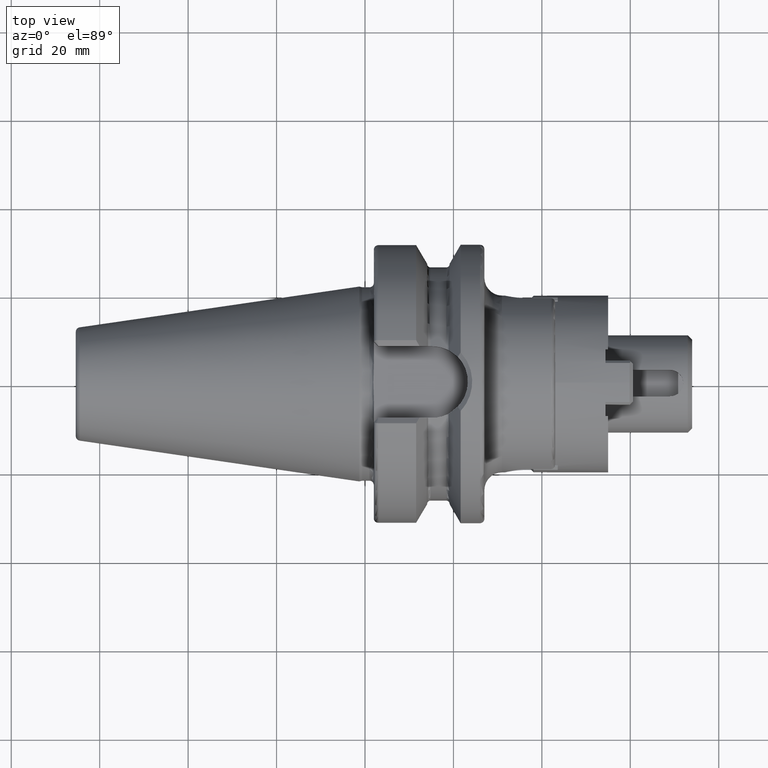
[diagram: clean part render]
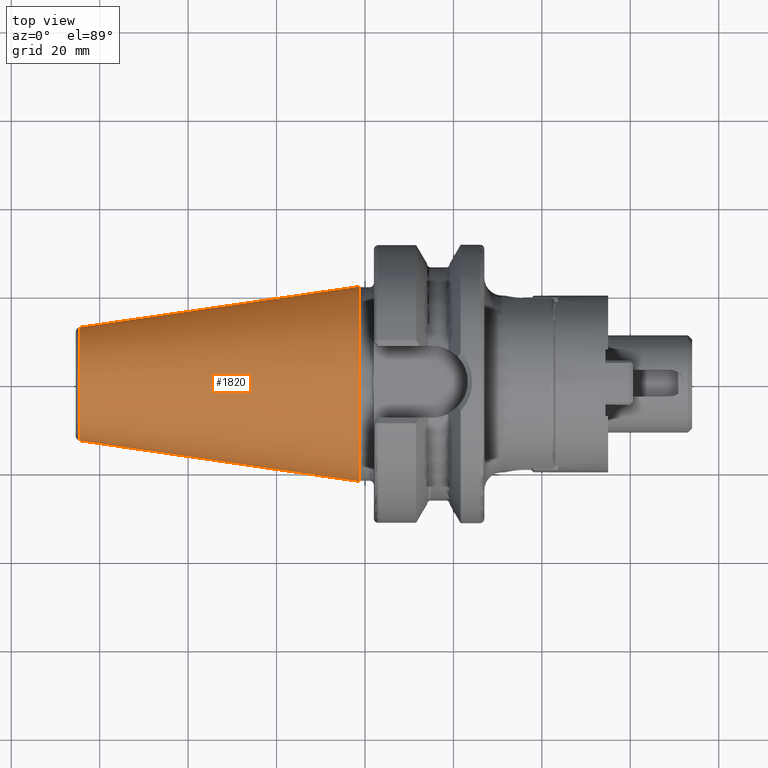
[diagram: same view with one face highlighted and labeled with its STEP entity id]
A machine part, top view. The second image highlights one B-rep face of the part: STEP entity #1820.
In plain terms, the highlighted conical surface has half-angle 8.298 deg.
Its self-contained STEP definition (entity closure, byte-faithful):
#37=CARTESIAN_POINT('',(-6.454431866917E1,0.E0,0.E0));
#38=DIRECTION('',(1.E0,0.E0,0.E0));
#39=DIRECTION('',(0.E0,1.E0,0.E0));
#40=AXIS2_PLACEMENT_3D('',#37,#38,#39);
#42=CARTESIAN_POINT('',(-1.266732031557E0,0.E0,0.E0));
#43=DIRECTION('',(1.E0,0.E0,0.E0));
#44=DIRECTION('',(0.E0,1.E0,0.E0));
#45=AXIS2_PLACEMENT_3D('',#42,#43,#44);
#47=DIRECTION('',(-9.895312636440E-1,-1.443186691705E-1,0.E0));
#48=VECTOR('',#47,6.394703124850E1);
#49=CARTESIAN_POINT('',(-1.266732031557E0,2.204025284980E1,0.E0));
#50=LINE('',#49,#48);
#51=DIRECTION('',(-9.895312636440E-1,1.443186691705E-1,0.E0));
#52=VECTOR('',#51,6.394703124850E1);
#53=CARTESIAN_POINT('',(-1.266732031557E0,-2.204025284980E1,0.E0));
#54=LINE('',#53,#52);
#1454=CARTESIAN_POINT('',(-6.454431866917E1,1.281150240261E1,0.E0));
#1456=VERTEX_POINT('',#1454);
#1458=CARTESIAN_POINT('',(-6.454431866917E1,-1.281150240261E1,0.E0));
#1460=VERTEX_POINT('',#1458);
#1673=CARTESIAN_POINT('',(-1.266732031557E0,2.204025284980E1,0.E0));
#1674=VERTEX_POINT('',#1673);
#1675=CARTESIAN_POINT('',(-1.266732031557E0,-2.204025284980E1,0.E0));
#1676=VERTEX_POINT('',#1675);
#1806=CARTESIAN_POINT('',(-3.290552535036E1,0.E0,0.E0));
#1807=DIRECTION('',(1.E0,0.E0,0.E0));
#1808=DIRECTION('',(0.E0,-1.E0,0.E0));
#1809=AXIS2_PLACEMENT_3D('',#1806,#1807,#1808);
#1810=CONICAL_SURFACE('',#1809,1.742587762621E1,8.297826828206E0);
#1812=ORIENTED_EDGE('',*,*,#1811,.F.);
#1814=ORIENTED_EDGE('',*,*,#1813,.T.);
#1816=ORIENTED_EDGE('',*,*,#1815,.T.);
#1817=ORIENTED_EDGE('',*,*,#1799,.F.);
#1818=EDGE_LOOP('',(#1812,#1814,#1816,#1817));
#1819=FACE_OUTER_BOUND('',#1818,.F.);
#1820=ADVANCED_FACE('',(#1819),#1810,.T.);
#41=CIRCLE('',#40,1.281150240261E1);
#46=CIRCLE('',#45,2.204025284980E1);
#1799=EDGE_CURVE('',#1456,#1460,#41,.T.);
#1811=EDGE_CURVE('',#1674,#1456,#50,.T.);
#1813=EDGE_CURVE('',#1674,#1676,#46,.T.);
#1815=EDGE_CURVE('',#1676,#1460,#54,.T.);